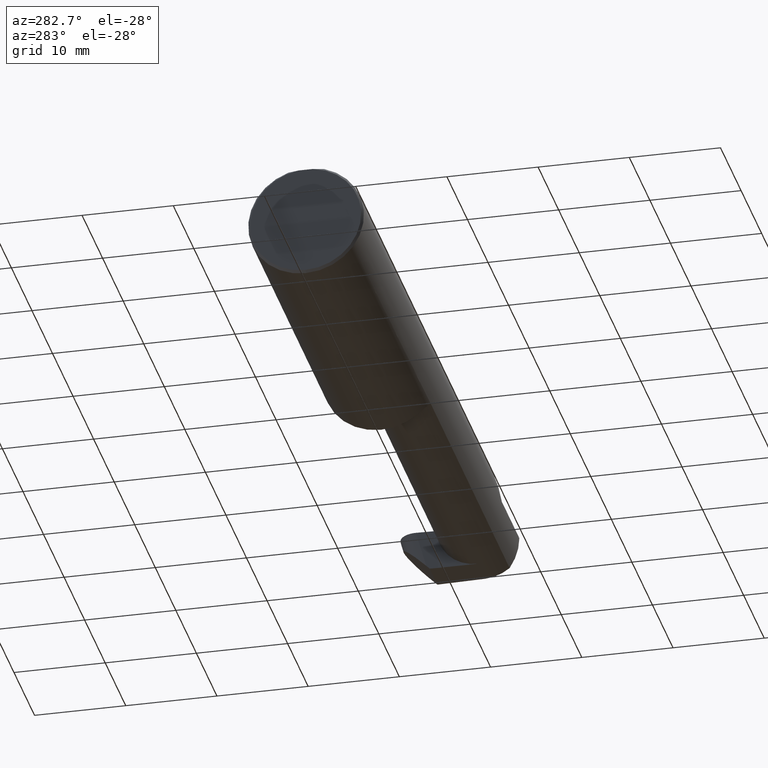
[diagram: clean part render]
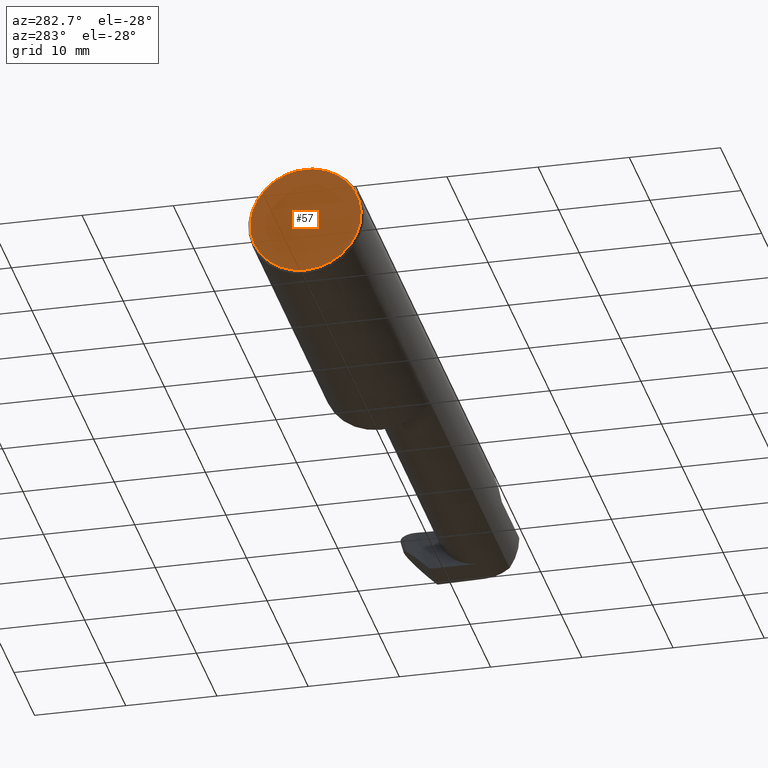
[diagram: same view with one face highlighted and labeled with its STEP entity id]
A machine part, auxiliary view. The second image highlights one B-rep face of the part: STEP entity #57.
In plain terms, the highlighted planar face has unit normal (1, 0, 0).
Its self-contained STEP definition (entity closure, byte-faithful):
#16 = EDGE_CURVE ( 'NONE', #275, #632, #265, .T. ) ;
#27 = ORIENTED_EDGE ( 'NONE', *, *, #410, .T. ) ;
#47 = AXIS2_PLACEMENT_3D ( 'NONE', #436, #601, #550 ) ;
#48 = CARTESIAN_POINT ( 'NONE',  ( 0.000000000000000000, 0.000000000000000000, -0.2398500000000001742 ) ) ;
#52 = CARTESIAN_POINT ( 'NONE',  ( 0.000000000000000000, 0.000000000000000000, 0.000000000000000000 ) ) ;
#57 = ADVANCED_FACE ( 'NONE', ( #161 ), #255, .F. ) ;
#102 = AXIS2_PLACEMENT_3D ( 'NONE', #660, #150, #309 ) ;
#106 = DIRECTION ( 'NONE',  ( 0.000000000000000000, 0.000000000000000000, -1.000000000000000000 ) ) ;
#150 = DIRECTION ( 'NONE',  ( -1.000000000000000000, -0.000000000000000000, -0.000000000000000000 ) ) ;
#153 = CARTESIAN_POINT ( 'NONE',  ( 0.000000000000000000, -0.03090954545120560767, 0.2378499999999998671 ) ) ;
#157 = LINE ( 'NONE', #549, #192 ) ;
#161 = FACE_OUTER_BOUND ( 'NONE', #184, .T. ) ;
#184 = EDGE_LOOP ( 'NONE', ( #27, #310, #408 ) ) ;
#192 = VECTOR ( 'NONE', #203, 39.37007874015748143 ) ;
#203 = DIRECTION ( 'NONE',  ( -0.000000000000000000, 1.000000000000000000, -0.000000000000000000 ) ) ;
#255 = PLANE ( 'NONE',  #47 ) ;
#265 = CIRCLE ( 'NONE', #357, 0.2398500000000001742 ) ;
#275 = VERTEX_POINT ( 'NONE', #419 ) ;
#309 = DIRECTION ( 'NONE',  ( 0.000000000000000000, 0.000000000000000000, -1.000000000000000000 ) ) ;
#310 = ORIENTED_EDGE ( 'NONE', *, *, #16, .T. ) ;
#357 = AXIS2_PLACEMENT_3D ( 'NONE', #52, #658, #106 ) ;
#368 = EDGE_CURVE ( 'NONE', #632, #377, #415, .T. ) ;
#377 = VERTEX_POINT ( 'NONE', #153 ) ;
#408 = ORIENTED_EDGE ( 'NONE', *, *, #368, .T. ) ;
#410 = EDGE_CURVE ( 'NONE', #377, #275, #157, .T. ) ;
#415 = CIRCLE ( 'NONE', #102, 0.2398500000000001742 ) ;
#419 = CARTESIAN_POINT ( 'NONE',  ( 0.000000000000000000, 0.03090954545120574992, 0.2378499999999998671 ) ) ;
#436 = CARTESIAN_POINT ( 'NONE',  ( 0.000000000000000000, 0.000000000000000000, 0.000000000000000000 ) ) ;
#549 = CARTESIAN_POINT ( 'NONE',  ( 0.000000000000000000, 0.2498499999999998500, 0.2378499999999998671 ) ) ;
#550 = DIRECTION ( 'NONE',  ( 0.000000000000000000, 0.000000000000000000, -1.000000000000000000 ) ) ;
#601 = DIRECTION ( 'NONE',  ( 1.000000000000000000, 0.000000000000000000, 0.000000000000000000 ) ) ;
#632 = VERTEX_POINT ( 'NONE', #48 ) ;
#658 = DIRECTION ( 'NONE',  ( -1.000000000000000000, -0.000000000000000000, -0.000000000000000000 ) ) ;
#660 = CARTESIAN_POINT ( 'NONE',  ( 0.000000000000000000, 0.000000000000000000, 0.000000000000000000 ) ) ;